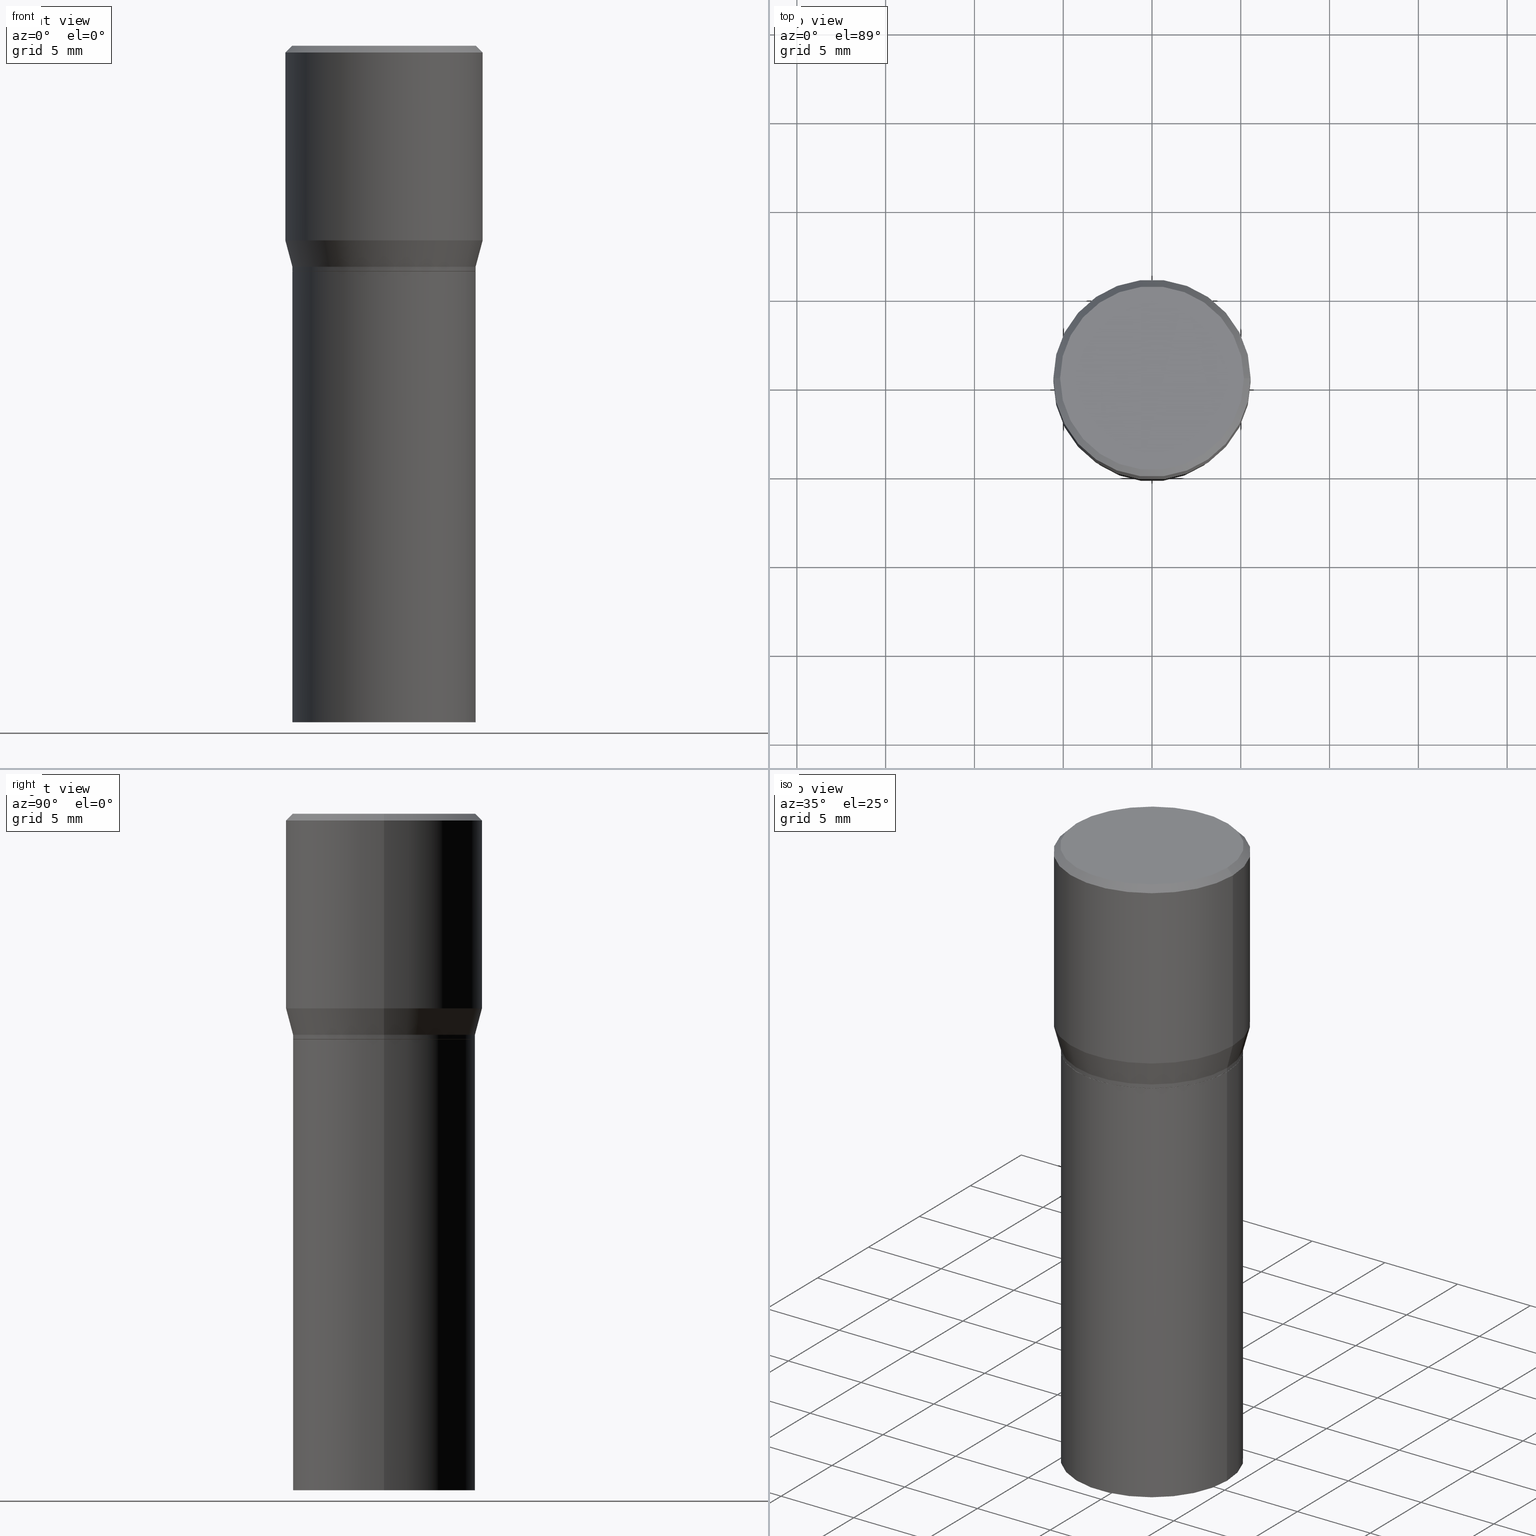
[diagram: canonical four-view strip — front | top / right | iso, engineering-drawing reading convention]
A machine part, canonical four-view strip (front | top / right | iso — engineering-drawing reading convention). The complete STEP part file that produces these views, byte-faithful:
ISO-10303-21;
HEADER;
FILE_DESCRIPTION (( 'STEP AP203' ),
    '1' );
FILE_NAME ('30456.STEP',
    '2024-03-13T16:11:54',
    ( '' ),
    ( '' ),
    'SwSTEP 2.0',
    'SolidWorks 2023',
    '' );
FILE_SCHEMA (( 'CONFIG_CONTROL_DESIGN' ));
ENDSEC;

DATA;
#1 = ORIENTED_EDGE ( 'NONE', *, *, #121, .T. ) ;
#2 = AXIS2_PLACEMENT_3D ( 'NONE', #225, #269, #127 ) ;
#3 = VECTOR ( 'NONE', #75, 39.37007874015748143 ) ;
#4 = DIRECTION ( 'NONE',  ( 1.000000000000000000, -6.982962677686265922E-15, 0.000000000000000000 ) ) ;
#5 = VERTEX_POINT ( 'NONE', #169 ) ;
#6 = LINE ( 'NONE', #156, #153 ) ;
#7 = DIRECTION ( 'NONE',  ( 1.000000000000000000, -6.982962677686264344E-15, 0.000000000000000000 ) ) ;
#8 = CARTESIAN_POINT ( 'NONE',  ( 1.198279715030717173E-29, -1.710825856033141537E-15, -0.4900000000000001021 ) ) ;
#9 = EDGE_CURVE ( 'NONE', #20, #426, #421, .T. ) ;
#10 = CARTESIAN_POINT ( 'NONE',  ( 1.418239719838093003E-15, 0.2030999999999982819, -0.5000000000000007772 ) ) ;
#11 = CARTESIAN_POINT ( 'NONE',  ( 0.000000000000000000, 0.000000000000000000, 0.000000000000000000 ) ) ;
#12 = AXIS2_PLACEMENT_3D ( 'NONE', #458, #349, #200 ) ;
#13 = CC_DESIGN_DATE_AND_TIME_ASSIGNMENT ( #345, #28, ( #419 ) ) ;
#14 = VECTOR ( 'NONE', #161, 39.37007874015748854 ) ;
#15 = CARTESIAN_POINT ( 'NONE',  ( 0.2026000000000000023, -3.160488907920811151E-15, -0.5000000000000001110 ) ) ;
#16 = ADVANCED_BREP_SHAPE_REPRESENTATION ( '30456', ( #134, #140, #12 ), #175 ) ;
#17 = CARTESIAN_POINT ( 'NONE',  ( 0.2031000000000000028, -3.162234648590232655E-15, -0.4995000000000001661 ) ) ;
#18 = ADVANCED_FACE ( 'NONE', ( #457 ), #388, .T. ) ;
#19 = EDGE_LOOP ( 'NONE', ( #152, #453, #383, #412 ) ) ;
#20 = VERTEX_POINT ( 'NONE', #69 ) ;
#21 = FACE_OUTER_BOUND ( 'NONE', #197, .T. ) ;
#22 = PERSON_AND_ORGANIZATION_ROLE ( 'classification_officer' ) ;
#23 = EDGE_LOOP ( 'NONE', ( #452, #35, #178, #455 ) ) ;
#24 = AXIS2_PLACEMENT_3D ( 'NONE', #246, #394, #328 ) ;
#25 = PERSON_AND_ORGANIZATION_ROLE ( 'design_owner' ) ;
#26 = DIRECTION ( 'NONE',  ( 1.000000000000000000, -6.982962677686266711E-15, 4.876176775795935793E-29 ) ) ;
#27 = ORIENTED_EDGE ( 'NONE', *, *, #403, .F. ) ;
#28 = DATE_TIME_ROLE ( 'classification_date' ) ;
#29 = ORIENTED_EDGE ( 'NONE', *, *, #102, .F. ) ;
#30 = AXIS2_PLACEMENT_3D ( 'NONE', #146, #360, #70 ) ;
#31 = COORDINATED_UNIVERSAL_TIME_OFFSET ( 5, 0, .BEHIND. ) ;
#32 = EDGE_CURVE ( 'NONE', #241, #445, #94, .T. ) ;
#33 = ORIENTED_EDGE ( 'NONE', *, *, #371, .F. ) ;
#34 = DIRECTION ( 'NONE',  ( -2.445468806185136597E-29, 3.491481338843145583E-15, 1.000000000000000000 ) ) ;
#35 = ORIENTED_EDGE ( 'NONE', *, *, #311, .T. ) ;
#36 = APPROVAL_PERSON_ORGANIZATION ( #272, #343, #234 ) ;
#37 = EDGE_CURVE ( 'NONE', #199, #20, #309, .T. ) ;
#38 = CC_DESIGN_APPROVAL ( #343, ( #350 ) ) ;
#39 = DIRECTION ( 'NONE',  ( 1.000000000000000000, -6.982962677686266711E-15, 4.876176775795935793E-29 ) ) ;
#40 = EDGE_LOOP ( 'NONE', ( #281, #235, #227, #154 ) ) ;
#41 = ORIENTED_EDGE ( 'NONE', *, *, #32, .F. ) ;
#42 = AXIS2_PLACEMENT_3D ( 'NONE', #331, #54, #80 ) ;
#43 = CIRCLE ( 'NONE', #93, 0.2026000000000000023 ) ;
#44 = CARTESIAN_POINT ( 'NONE',  ( -2.592568563193567003E-45, 3.701500806376036554E-31, 1.060151966214568974E-16 ) ) ;
#45 = EDGE_CURVE ( 'NONE', #431, #20, #103, .T. ) ;
#46 = CARTESIAN_POINT ( 'NONE',  ( 1.222734403092568719E-29, -1.745740669421573186E-15, -0.5000000000000001110 ) ) ;
#47 = PLANE ( 'NONE',  #295 ) ;
#48 = VERTEX_POINT ( 'NONE', #317 ) ;
#49 = CARTESIAN_POINT ( 'NONE',  ( 3.668203209277704895E-29, -5.237222008264718177E-15, -1.500000000000000222 ) ) ;
#50 = EDGE_CURVE ( 'NONE', #67, #101, #324, .T. ) ;
#51 = ORIENTED_EDGE ( 'NONE', *, *, #50, .F. ) ;
#52 = CC_DESIGN_PERSON_AND_ORGANIZATION_ASSIGNMENT ( #308, #25, ( #158 ) ) ;
#53 = ORIENTED_EDGE ( 'NONE', *, *, #362, .T. ) ;
#54 = DIRECTION ( 'NONE',  ( 2.438088387897960049E-29, -3.491481338843145188E-15, -1.000000000000000000 ) ) ;
#55 = VECTOR ( 'NONE', #450, 39.37007874015748854 ) ;
#56 = CARTESIAN_POINT ( 'NONE',  ( 0.000000000000000000, 0.000000000000000000, 0.000000000000000000 ) ) ;
#57 = CONICAL_SURFACE ( 'NONE', #313, 0.2187500000000000000, 0.7853981633974450594 ) ;
#58 = PRODUCT_DEFINITION_FORMATION_WITH_SPECIFIED_SOURCE ( 'ANY', '', #158, .NOT_KNOWN. ) ;
#59 = PERSON_AND_ORGANIZATION ( #285, #407 ) ;
#60 = PRODUCT_RELATED_PRODUCT_CATEGORY ( 'detail', '', ( #158 ) ) ;
#61 = PERSON_AND_ORGANIZATION ( #285, #407 ) ;
#62 = EDGE_CURVE ( 'NONE', #241, #122, #155, .T. ) ;
#63 = VECTOR ( 'NONE', #310, 39.37007874015748143 ) ;
#64 = CIRCLE ( 'NONE', #232, 0.2187500000000000000 ) ;
#65 = EDGE_LOOP ( 'NONE', ( #451, #373 ) ) ;
#66 = DIRECTION ( 'NONE',  ( -2.445468806185136597E-29, 3.491481338843145583E-15, 1.000000000000000000 ) ) ;
#67 = VERTEX_POINT ( 'NONE', #214 ) ;
#68 = CARTESIAN_POINT ( 'NONE',  ( 1.222734403092568719E-29, -1.745740669421573186E-15, -0.5000000000000001110 ) ) ;
#69 = CARTESIAN_POINT ( 'NONE',  ( 0.2187500000000000000, -1.579895305826517922E-15, -0.01499999999999999944 ) ) ;
#70 = DIRECTION ( 'NONE',  ( 1.000000000000000000, -6.982962677686268288E-15, 0.000000000000000000 ) ) ;
#71 = AXIS2_PLACEMENT_3D ( 'NONE', #8, #444, #258 ) ;
#72 = DIRECTION ( 'NONE',  ( 1.000000000000000000, -6.982962677686265922E-15, 4.876176775795935793E-29 ) ) ;
#73 = AXIS2_PLACEMENT_3D ( 'NONE', #250, #66, #400 ) ;
#74 = DIRECTION ( 'NONE',  ( 1.000000000000000000, -6.982962677686266711E-15, 4.876176775795935232E-29 ) ) ;
#75 = DIRECTION ( 'NONE',  ( -2.445468806185136877E-29, 3.491481338843145188E-15, 1.000000000000000000 ) ) ;
#76 = DIRECTION ( 'NONE',  ( 1.000000000000000000, -6.982962677686265922E-15, 0.000000000000000000 ) ) ;
#77 = EDGE_CURVE ( 'NONE', #129, #431, #395, .T. ) ;
#78 = CARTESIAN_POINT ( 'NONE',  ( 1.198279715030717173E-29, -1.710825856033141537E-15, -0.4900000000000001021 ) ) ;
#79 = PLANE ( 'NONE',  #312 ) ;
#80 = DIRECTION ( 'NONE',  ( -1.000000000000000000, 6.982962677686265922E-15, -4.876176775795935793E-29 ) ) ;
#81 = VECTOR ( 'NONE', #438, 39.37007874015748854 ) ;
#82 = ORIENTED_EDGE ( 'NONE', *, *, #268, .F. ) ;
#83 = APPROVAL ( #375, 'UNSPECIFIED' ) ;
#84 = DIRECTION ( 'NONE',  ( 1.000000000000000000, -6.982962677686268288E-15, 0.000000000000000000 ) ) ;
#85 = DIRECTION ( 'NONE',  ( -2.445468806185136597E-29, 3.491481338843145583E-15, 1.000000000000000000 ) ) ;
#86 = PLANE ( 'NONE',  #42 ) ;
#87 = ADVANCED_FACE ( 'NONE', ( #393 ), #203, .T. ) ;
#88 =( CONVERSION_BASED_UNIT ( 'INCH', #259 ) LENGTH_UNIT ( ) NAMED_UNIT ( #316 ) );
#89 = VECTOR ( 'NONE', #116, 39.37007874015748143 ) ;
#90 = DATE_AND_TIME ( #427, #204 ) ;
#91 = ADVANCED_FACE ( 'NONE', ( #392 ), #448, .T. ) ;
#92 = VERTEX_POINT ( 'NONE', #224 ) ;
#93 = AXIS2_PLACEMENT_3D ( 'NONE', #217, #363, #84 ) ;
#94 = CIRCLE ( 'NONE', #365, 0.2031000000000000028 ) ;
#95 = CC_DESIGN_SECURITY_CLASSIFICATION ( #419, ( #58 ) ) ;
#96 = CC_DESIGN_PERSON_AND_ORGANIZATION_ASSIGNMENT ( #61, #267, ( #58 ) ) ;
#97 = COORDINATED_UNIVERSAL_TIME_OFFSET ( 5, 0, .BEHIND. ) ;
#98 = DIRECTION ( 'NONE',  ( -2.445468806185136877E-29, 3.491481338843145188E-15, 1.000000000000000000 ) ) ;
#99 = CALENDAR_DATE ( 2024, 13, 3 ) ;
#100 = ORIENTED_EDGE ( 'NONE', *, *, #371, .T. ) ;
#101 = VERTEX_POINT ( 'NONE', #368 ) ;
#102 = EDGE_CURVE ( 'NONE', #445, #205, #333, .T. ) ;
#103 = LINE ( 'NONE', #348, #248 ) ;
#104 = DIRECTION ( 'NONE',  ( 1.000000000000000000, -6.982962677686265133E-15, 0.000000000000000000 ) ) ;
#105 = UNCERTAINTY_MEASURE_WITH_UNIT (LENGTH_MEASURE( 1.000000000000000082E-05 ), #88, 'distance_accuracy_value', 'NONE');
#106 = LINE ( 'NONE', #319, #81 ) ;
#107 = CARTESIAN_POINT ( 'NONE',  ( 1.055448208544146876E-29, -1.506900319041867721E-15, -0.4315934048615475138 ) ) ;
#108 = AXIS2_PLACEMENT_3D ( 'NONE', #11, #159, #449 ) ;
#109 = DIRECTION ( 'NONE',  ( -2.445468806185136597E-29, 3.491481338843145583E-15, 1.000000000000000000 ) ) ;
#110 = ORIENTED_EDGE ( 'NONE', *, *, #262, .F. ) ;
#111 = ORIENTED_EDGE ( 'NONE', *, *, #226, .F. ) ;
#112 = ADVANCED_FACE ( 'NONE', ( #437 ), #57, .T. ) ;
#113 = DIRECTION ( 'NONE',  ( -2.445468806185136597E-29, 3.491481338843145583E-15, 1.000000000000000000 ) ) ;
#114 = DIRECTION ( 'NONE',  ( -2.445468806185136597E-29, 3.491481338843145583E-15, 1.000000000000000000 ) ) ;
#115 = CC_DESIGN_PERSON_AND_ORGANIZATION_ASSIGNMENT ( #338, #22, ( #419 ) ) ;
#116 = DIRECTION ( 'NONE',  ( -2.445468806185136877E-29, 3.491481338843145188E-15, 1.000000000000000000 ) ) ;
#117 = AXIS2_PLACEMENT_3D ( 'NONE', #78, #216, #4 ) ;
#118 = DIRECTION ( 'NONE',  ( -2.445468806185136597E-29, 3.491481338843145583E-15, 1.000000000000000000 ) ) ;
#119 = AXIS2_PLACEMENT_3D ( 'NONE', #461, #143, #244 ) ;
#120 = AXIS2_PLACEMENT_3D ( 'NONE', #107, #462, #104 ) ;
#121 = EDGE_CURVE ( 'NONE', #129, #426, #401, .T. ) ;
#122 = VERTEX_POINT ( 'NONE', #196 ) ;
#123 = DIRECTION ( 'NONE',  ( -2.445468806185136597E-29, 3.491481338843145583E-15, 1.000000000000000000 ) ) ;
#124 = ORIENTED_EDGE ( 'NONE', *, *, #268, .T. ) ;
#125 = ORIENTED_EDGE ( 'NONE', *, *, #135, .T. ) ;
#126 = CARTESIAN_POINT ( 'NONE',  ( 3.668203209277705088E-31, -5.237222008264718399E-17, -0.01499999999999999944 ) ) ;
#127 = DIRECTION ( 'NONE',  ( 1.000000000000000000, -6.982962677686266711E-15, 0.000000000000000000 ) ) ;
#128 = AXIS2_PLACEMENT_3D ( 'NONE', #326, #157, #76 ) ;
#129 = VERTEX_POINT ( 'NONE', #337 ) ;
#130 = ADVANCED_FACE ( 'NONE', ( #374 ), #86, .F. ) ;
#131 = COORDINATED_UNIVERSAL_TIME_OFFSET ( 5, 0, .BEHIND. ) ;
#132 = DATE_AND_TIME ( #99, #356 ) ;
#133 = ORIENTED_EDGE ( 'NONE', *, *, #221, .F. ) ;
#134 = MANIFOLD_SOLID_BREP ( 'Body-Move/Copy2[1]', #456 ) ;
#135 = EDGE_CURVE ( 'NONE', #48, #164, #301, .T. ) ;
#136 = VECTOR ( 'NONE', #353, 39.37007874015748143 ) ;
#137 = AXIS2_PLACEMENT_3D ( 'NONE', #194, #436, #72 ) ;
#138 = DATE_AND_TIME ( #414, #439 ) ;
#139 = ORIENTED_EDGE ( 'NONE', *, *, #121, .F. ) ;
#140 = MANIFOLD_SOLID_BREP ( 'Body-Move/Copy2[2]', #339 ) ;
#141 = ORIENTED_EDGE ( 'NONE', *, *, #50, .T. ) ;
#142 = DIRECTION ( 'NONE',  ( -2.445468806185136877E-29, 3.491481338843145188E-15, 1.000000000000000000 ) ) ;
#143 = DIRECTION ( 'NONE',  ( -2.445468806185136597E-29, 3.491481338843145583E-15, 1.000000000000000000 ) ) ;
#144 = DIRECTION ( 'NONE',  ( 1.000000000000000000, -6.982962677686266711E-15, 4.876176775795935793E-29 ) ) ;
#145 = EDGE_LOOP ( 'NONE', ( #100, #409, #355, #29 ) ) ;
#146 = CARTESIAN_POINT ( 'NONE',  ( 1.222734403092568719E-29, -1.745740669421573186E-15, -0.5000000000000001110 ) ) ;
#147 = DIRECTION ( 'NONE',  ( -2.445468806185136597E-29, 3.491481338843145583E-15, 1.000000000000000000 ) ) ;
#148 =( NAMED_UNIT ( * ) SI_UNIT ( $, .STERADIAN. ) SOLID_ANGLE_UNIT ( ) );
#149 = CC_DESIGN_PERSON_AND_ORGANIZATION_ASSIGNMENT ( #230, #236, ( #350 ) ) ;
#150 = DIRECTION ( 'NONE',  ( -2.445468806185136597E-29, 3.491481338843145583E-15, 1.000000000000000000 ) ) ;
#151 = CARTESIAN_POINT ( 'NONE',  ( 0.2187500000000000000, -3.034423404785738170E-15, -0.4315934048615475138 ) ) ;
#152 = ORIENTED_EDGE ( 'NONE', *, *, #346, .F. ) ;
#153 = VECTOR ( 'NONE', #185, 39.37007874015748854 ) ;
#154 = ORIENTED_EDGE ( 'NONE', *, *, #37, .F. ) ;
#155 = LINE ( 'NONE', #173, #63 ) ;
#156 = CARTESIAN_POINT ( 'NONE',  ( 0.2031000000000000583, -3.129065575871222509E-15, -0.4900000000000001021 ) ) ;
#157 = DIRECTION ( 'NONE',  ( -2.445468806185136597E-29, 3.491481338843145583E-15, 1.000000000000000000 ) ) ;
#158 = PRODUCT ( '30456', '30456', '', ( #171 ) ) ;
#159 = DIRECTION ( 'NONE',  ( -2.445468806185136597E-29, 3.491481338843145583E-15, 1.000000000000000000 ) ) ;
#160 = VECTOR ( 'NONE', #142, 39.37007874015748143 ) ;
#161 = DIRECTION ( 'NONE',  ( 0.7071067811865715536, -2.468850131082509496E-15, 0.7071067811865232589 ) ) ;
#162 = LINE ( 'NONE', #336, #55 ) ;
#163 = DIRECTION ( 'NONE',  ( -1.000000000000000000, 6.982962677686266711E-15, 0.000000000000000000 ) ) ;
#164 = VERTEX_POINT ( 'NONE', #192 ) ;
#165 = ADVANCED_FACE ( 'NONE', ( #21 ), #300, .T. ) ;
#166 = APPROVAL_DATE_TIME ( #132, #415 ) ;
#167 = AXIS2_PLACEMENT_3D ( 'NONE', #298, #113, #213 ) ;
#168 = CC_DESIGN_DATE_AND_TIME_ASSIGNMENT ( #90, #271, ( #350 ) ) ;
#169 = CARTESIAN_POINT ( 'NONE',  ( -0.2031000000000000028, -2.048369042514382480E-15, -0.5000000000000001110 ) ) ;
#170 = PERSON_AND_ORGANIZATION ( #285, #407 ) ;
#171 = MECHANICAL_CONTEXT ( 'NONE', #189, 'mechanical' ) ;
#172 = DIRECTION ( 'NONE',  ( 0.7071067811865452413, -7.319954787623248157E-15, -0.7071067811865497932 ) ) ;
#173 = CARTESIAN_POINT ( 'NONE',  ( -0.2031000000000000028, 1.443112296328763497E-15, -9.990357168307714203E-30 ) ) ;
#174 = ADVANCED_FACE ( 'NONE', ( #293 ), #273, .T. ) ;
#175 =( GEOMETRIC_REPRESENTATION_CONTEXT ( 3 ) GLOBAL_UNCERTAINTY_ASSIGNED_CONTEXT ( ( #105 ) ) GLOBAL_UNIT_ASSIGNED_CONTEXT ( ( #88, #181, #148 ) ) REPRESENTATION_CONTEXT ( 'NONE', 'WORKASPACE' ) );
#176 = FACE_OUTER_BOUND ( 'NONE', #263, .T. ) ;
#177 = CARTESIAN_POINT ( 'NONE',  ( 0.000000000000000000, 0.000000000000000000, 0.000000000000000000 ) ) ;
#178 = ORIENTED_EDGE ( 'NONE', *, *, #201, .T. ) ;
#179 = AXIS2_PLACEMENT_3D ( 'NONE', #286, #147, #283 ) ;
#180 = EDGE_CURVE ( 'NONE', #164, #445, #222, .T. ) ;
#181 =( NAMED_UNIT ( * ) PLANE_ANGLE_UNIT ( ) SI_UNIT ( $, .RADIAN. ) );
#182 = ORIENTED_EDGE ( 'NONE', *, *, #45, .T. ) ;
#183 = CARTESIAN_POINT ( 'NONE',  ( 3.668203209277704895E-29, -5.237222008264718177E-15, -1.500000000000000222 ) ) ;
#184 = EDGE_CURVE ( 'NONE', #199, #92, #288, .T. ) ;
#185 = DIRECTION ( 'NONE',  ( 0.2588190451025211836, 1.565188264969622559E-15, 0.9659258262890679791 ) ) ;
#186 = CARTESIAN_POINT ( 'NONE',  ( -0.2031000000000000028, -2.048369042514382480E-15, -1.500000000000000222 ) ) ;
#187 = CIRCLE ( 'NONE', #128, 0.2031000000000000583 ) ;
#188 = FACE_OUTER_BOUND ( 'NONE', #40, .T. ) ;
#189 = APPLICATION_CONTEXT ( 'configuration controlled 3d designs of mechanical parts and assemblies' ) ;
#190 = DIRECTION ( 'NONE',  ( 1.000000000000000000, -6.982962677686266711E-15, 4.875065411617369217E-29 ) ) ;
#191 = DIRECTION ( 'NONE',  ( -1.000000000000000000, 6.982962677686266711E-15, 0.000000000000000000 ) ) ;
#192 = CARTESIAN_POINT ( 'NONE',  ( 0.2026000000000000023, -3.160488907920811151E-15, -0.5000000000000001110 ) ) ;
#193 = ADVANCED_FACE ( 'NONE', ( #188 ), #361, .T. ) ;
#194 = CARTESIAN_POINT ( 'NONE',  ( 1.222734403092568719E-29, -1.745740669421573186E-15, -0.5000000000000001110 ) ) ;
#195 = DIRECTION ( 'NONE',  ( 1.000000000000000000, -6.982962677686265922E-15, 4.876176775795935793E-29 ) ) ;
#196 = CARTESIAN_POINT ( 'NONE',  ( -0.2031000000000000583, -1.101508221355132898E-16, -0.4900000000000001021 ) ) ;
#197 = EDGE_LOOP ( 'NONE', ( #110, #256, #141, #111 ) ) ;
#198 = AXIS2_PLACEMENT_3D ( 'NONE', #56, #233, #26 ) ;
#199 = VERTEX_POINT ( 'NONE', #151 ) ;
#200 = DIRECTION ( 'NONE',  ( 1.000000000000000000, 0.000000000000000000, 0.000000000000000000 ) ) ;
#201 = EDGE_CURVE ( 'NONE', #205, #199, #6, .T. ) ;
#202 = SECURITY_CLASSIFICATION_LEVEL ( 'unclassified' ) ;
#203 = CONICAL_SURFACE ( 'NONE', #30, 0.2026000000000000023, 0.7853981633974824739 ) ;
#204 = LOCAL_TIME ( 12, 11, 54.00000000000000000, #97 ) ;
#205 = VERTEX_POINT ( 'NONE', #215 ) ;
#206 = PERSON_AND_ORGANIZATION_ROLE ( 'creator' ) ;
#207 = APPROVAL_DATE_TIME ( #342, #83 ) ;
#208 = EDGE_LOOP ( 'NONE', ( #82, #297 ) ) ;
#209 = CARTESIAN_POINT ( 'NONE',  ( 0.2187500000000000000, -1.527523085743870843E-15, 1.066663669705360885E-29 ) ) ;
#210 = LOCAL_TIME ( 12, 11, 54.00000000000000000, #31 ) ;
#211 = DIRECTION ( 'NONE',  ( 1.000000000000000000, -6.982962677686268288E-15, 0.000000000000000000 ) ) ;
#212 = CIRCLE ( 'NONE', #252, 0.2031000000000000028 ) ;
#213 = DIRECTION ( 'NONE',  ( 1.000000000000000000, -6.982962677686265133E-15, 0.000000000000000000 ) ) ;
#214 = CARTESIAN_POINT ( 'NONE',  ( 0.2031000000000000028, -6.655461728102798952E-15, -1.500000000000000222 ) ) ;
#215 = CARTESIAN_POINT ( 'NONE',  ( 0.2031000000000000583, -3.129065575871222509E-15, -0.4900000000000001021 ) ) ;
#216 = DIRECTION ( 'NONE',  ( -2.445468806185136597E-29, 3.491481338843145583E-15, 1.000000000000000000 ) ) ;
#217 = CARTESIAN_POINT ( 'NONE',  ( 1.222734403092568719E-29, -1.745740669421573186E-15, -0.5000000000000001110 ) ) ;
#218 = CARTESIAN_POINT ( 'NONE',  ( 3.668203209277705088E-31, -5.237222008264718399E-17, -0.01499999999999999944 ) ) ;
#219 = AXIS2_PLACEMENT_3D ( 'NONE', #390, #34, #144 ) ;
#220 = CARTESIAN_POINT ( 'NONE',  ( 0.000000000000000000, 0.000000000000000000, 0.000000000000000000 ) ) ;
#221 = EDGE_CURVE ( 'NONE', #48, #241, #106, .T. ) ;
#222 = LINE ( 'NONE', #15, #14 ) ;
#223 =( LENGTH_UNIT ( ) NAMED_UNIT ( * ) SI_UNIT ( $, .METRE. ) );
#224 = CARTESIAN_POINT ( 'NONE',  ( -0.2187500000000000000, 4.741191543335144142E-17, -0.4315934048615475138 ) ) ;
#225 = CARTESIAN_POINT ( 'NONE',  ( 3.668203209277705088E-31, -5.237222008264718399E-17, -0.01499999999999999944 ) ) ;
#226 = EDGE_CURVE ( 'NONE', #5, #101, #430, .T. ) ;
#227 = ORIENTED_EDGE ( 'NONE', *, *, #9, .F. ) ;
#228 = PERSON_AND_ORGANIZATION ( #285, #407 ) ;
#229 = ORIENTED_EDGE ( 'NONE', *, *, #32, .T. ) ;
#230 = PERSON_AND_ORGANIZATION ( #285, #407 ) ;
#231 = APPROVAL_PERSON_ORGANIZATION ( #170, #83, #303 ) ;
#232 = AXIS2_PLACEMENT_3D ( 'NONE', #320, #354, #432 ) ;
#233 = DIRECTION ( 'NONE',  ( -2.445468806185136597E-29, 3.491481338843145583E-15, 1.000000000000000000 ) ) ;
#234 = APPROVAL_ROLE ( '' ) ;
#235 = ORIENTED_EDGE ( 'NONE', *, *, #346, .T. ) ;
#236 = PERSON_AND_ORGANIZATION_ROLE ( 'creator' ) ;
#237 = DIRECTION ( 'NONE',  ( -2.445468806185136597E-29, 3.491481338843145583E-15, 1.000000000000000000 ) ) ;
#238 = ORIENTED_EDGE ( 'NONE', *, *, #201, .F. ) ;
#239 = EDGE_CURVE ( 'NONE', #344, #67, #334, .T. ) ;
#240 = CC_DESIGN_APPROVAL ( #83, ( #419 ) ) ;
#241 = VERTEX_POINT ( 'NONE', #435 ) ;
#242 = CYLINDRICAL_SURFACE ( 'NONE', #219, 0.2031000000000000028 ) ;
#243 = ORIENTED_EDGE ( 'NONE', *, *, #45, .F. ) ;
#244 = DIRECTION ( 'NONE',  ( 1.000000000000000000, -6.982962677686266711E-15, 4.875065411617369217E-29 ) ) ;
#245 = ORIENTED_EDGE ( 'NONE', *, *, #180, .T. ) ;
#246 = CARTESIAN_POINT ( 'NONE',  ( 1.222734403092568719E-29, -1.745740669421573186E-15, -0.5000000000000001110 ) ) ;
#247 = DIRECTION ( 'NONE',  ( -2.445468806185136597E-29, 3.491481338843145583E-15, 1.000000000000000000 ) ) ;
#248 = VECTOR ( 'NONE', #172, 39.37007874015748143 ) ;
#249 = FACE_OUTER_BOUND ( 'NONE', #321, .T. ) ;
#250 = CARTESIAN_POINT ( 'NONE',  ( 1.221511668689476057E-29, -1.743994928752151682E-15, -0.4995000000000001661 ) ) ;
#251 = FACE_OUTER_BOUND ( 'NONE', #420, .T. ) ;
#252 = AXIS2_PLACEMENT_3D ( 'NONE', #49, #85, #7 ) ;
#253 = ORIENTED_EDGE ( 'NONE', *, *, #311, .F. ) ;
#254 = CONICAL_SURFACE ( 'NONE', #378, 0.2187500000000000000, 0.7853981633974450594 ) ;
#255 = DIRECTION ( 'NONE',  ( 2.438088387897960049E-29, -3.491481338843145188E-15, -1.000000000000000000 ) ) ;
#256 = ORIENTED_EDGE ( 'NONE', *, *, #239, .T. ) ;
#257 = CC_DESIGN_PERSON_AND_ORGANIZATION_ASSIGNMENT ( #59, #206, ( #58 ) ) ;
#258 = DIRECTION ( 'NONE',  ( 1.000000000000000000, -6.982962677686265922E-15, 0.000000000000000000 ) ) ;
#259 = LENGTH_MEASURE_WITH_UNIT ( LENGTH_MEASURE( 0.02539999999999999897 ), #223 );
#260 = ORIENTED_EDGE ( 'NONE', *, *, #180, .F. ) ;
#261 = CARTESIAN_POINT ( 'NONE',  ( 0.2031000000000000028, -1.418239719838080775E-15, 9.903515031641546145E-30 ) ) ;
#262 = EDGE_CURVE ( 'NONE', #344, #5, #289, .T. ) ;
#263 = EDGE_LOOP ( 'NONE', ( #277, #379, #370, #238 ) ) ;
#264 = CARTESIAN_POINT ( 'NONE',  ( -0.2187500000000000000, 1.475150865661223567E-15, -0.01499999999999999944 ) ) ;
#265 = LOCAL_TIME ( 12, 11, 54.00000000000000000, #131 ) ;
#266 = EDGE_LOOP ( 'NONE', ( #124, #284, #33, #260 ) ) ;
#267 = PERSON_AND_ORGANIZATION_ROLE ( 'design_supplier' ) ;
#268 = EDGE_CURVE ( 'NONE', #164, #48, #43, .T. ) ;
#269 = DIRECTION ( 'NONE',  ( -2.445468806185136597E-29, 3.491481338843145583E-15, 1.000000000000000000 ) ) ;
#270 = ORIENTED_EDGE ( 'NONE', *, *, #262, .T. ) ;
#271 = DATE_TIME_ROLE ( 'creation_date' ) ;
#272 = PERSON_AND_ORGANIZATION ( #285, #407 ) ;
#273 = CONICAL_SURFACE ( 'NONE', #71, 0.2031000000000000583, 0.2617993877991499074 ) ;
#274 = APPROVAL_PERSON_ORGANIZATION ( #228, #415, #276 ) ;
#275 = ORIENTED_EDGE ( 'NONE', *, *, #77, .F. ) ;
#276 = APPROVAL_ROLE ( '' ) ;
#277 = ORIENTED_EDGE ( 'NONE', *, *, #418, .T. ) ;
#278 = APPROVAL_STATUS ( 'not_yet_approved' ) ;
#279 = ORIENTED_EDGE ( 'NONE', *, *, #362, .F. ) ;
#280 = AXIS2_PLACEMENT_3D ( 'NONE', #292, #114, #74 ) ;
#281 = ORIENTED_EDGE ( 'NONE', *, *, #184, .T. ) ;
#282 = DIRECTION ( 'NONE',  ( -2.445468806185136597E-29, 3.491481338843145583E-15, 1.000000000000000000 ) ) ;
#283 = DIRECTION ( 'NONE',  ( 1.000000000000000000, -6.982962677686265922E-15, 0.000000000000000000 ) ) ;
#284 = ORIENTED_EDGE ( 'NONE', *, *, #221, .T. ) ;
#285 = PERSON ( 'UNSPECIFIED', 'UNSPECIFIED', 'UNSPECIFIED', ('UNSPECIFIED'), ('UNSPECIFIED'), ('UNSPECIFIED') ) ;
#286 = CARTESIAN_POINT ( 'NONE',  ( 1.222734403092568719E-29, -1.745740669421573186E-15, -0.5000000000000001110 ) ) ;
#287 = ORIENTED_EDGE ( 'NONE', *, *, #239, .F. ) ;
#288 = CIRCLE ( 'NONE', #167, 0.2187500000000000000 ) ;
#289 = LINE ( 'NONE', #399, #3 ) ;
#290 = ADVANCED_FACE ( 'NONE', ( #325 ), #291, .F. ) ;
#291 = PLANE ( 'NONE',  #137 ) ;
#292 = CARTESIAN_POINT ( 'NONE',  ( 0.000000000000000000, 0.000000000000000000, 0.000000000000000000 ) ) ;
#293 = FACE_OUTER_BOUND ( 'NONE', #23, .T. ) ;
#294 = VECTOR ( 'NONE', #411, 39.37007874015748143 ) ;
#295 = AXIS2_PLACEMENT_3D ( 'NONE', #10, #255, #408 ) ;
#296 = ADVANCED_FACE ( 'NONE', ( #251 ), #402, .T. ) ;
#297 = ORIENTED_EDGE ( 'NONE', *, *, #135, .F. ) ;
#298 = CARTESIAN_POINT ( 'NONE',  ( 1.055448208544146876E-29, -1.506900319041867721E-15, -0.4315934048615475138 ) ) ;
#299 = ORIENTED_EDGE ( 'NONE', *, *, #9, .T. ) ;
#300 = CYLINDRICAL_SURFACE ( 'NONE', #108, 0.2031000000000000028 ) ;
#301 = CIRCLE ( 'NONE', #306, 0.2026000000000000023 ) ;
#302 = CIRCLE ( 'NONE', #179, 0.2031000000000000028 ) ;
#303 = APPROVAL_ROLE ( '' ) ;
#304 = FACE_OUTER_BOUND ( 'NONE', #406, .T. ) ;
#305 = SHAPE_DEFINITION_REPRESENTATION ( #364, #16 ) ;
#306 = AXIS2_PLACEMENT_3D ( 'NONE', #46, #123, #327 ) ;
#307 = ADVANCED_FACE ( 'NONE', ( #318 ), #47, .F. ) ;
#308 = PERSON_AND_ORGANIZATION ( #285, #407 ) ;
#309 = LINE ( 'NONE', #209, #372 ) ;
#310 = DIRECTION ( 'NONE',  ( -2.445468806185136877E-29, 3.491481338843145188E-15, 1.000000000000000000 ) ) ;
#311 = EDGE_CURVE ( 'NONE', #122, #205, #396, .T. ) ;
#312 = AXIS2_PLACEMENT_3D ( 'NONE', #441, #405, #195 ) ;
#313 = AXIS2_PLACEMENT_3D ( 'NONE', #126, #410, #163 ) ;
#314 = FACE_OUTER_BOUND ( 'NONE', #145, .T. ) ;
#315 = EDGE_LOOP ( 'NONE', ( #27, #182, #299, #139 ) ) ;
#316 = DIMENSIONAL_EXPONENTS ( 1.000000000000000000, 0.000000000000000000, 0.000000000000000000, 0.000000000000000000, 0.000000000000000000, 0.000000000000000000, 0.000000000000000000 ) ;
#317 = CARTESIAN_POINT ( 'NONE',  ( -0.2026000000000000023, -3.035318595974993861E-16, -0.5000000000000001110 ) ) ;
#318 = FACE_OUTER_BOUND ( 'NONE', #347, .T. ) ;
#319 = CARTESIAN_POINT ( 'NONE',  ( -0.2026000000000000023, -3.061810867716101928E-16, -0.5000000000000001110 ) ) ;
#320 = CARTESIAN_POINT ( 'NONE',  ( 3.668203209277705088E-31, -5.237222008264718399E-17, -0.01499999999999999944 ) ) ;
#321 = EDGE_LOOP ( 'NONE', ( #416, #229, #428, #253 ) ) ;
#322 = ADVANCED_FACE ( 'NONE', ( #249 ), #398, .T. ) ;
#323 = CIRCLE ( 'NONE', #73, 0.2031000000000000028 ) ;
#324 = LINE ( 'NONE', #397, #136 ) ;
#325 = FACE_OUTER_BOUND ( 'NONE', #208, .T. ) ;
#326 = CARTESIAN_POINT ( 'NONE',  ( 1.198279715030717173E-29, -1.710825856033141537E-15, -0.4900000000000001021 ) ) ;
#327 = DIRECTION ( 'NONE',  ( 1.000000000000000000, -6.982962677686268288E-15, 0.000000000000000000 ) ) ;
#328 = DIRECTION ( 'NONE',  ( 1.000000000000000000, -6.982962677686265922E-15, 0.000000000000000000 ) ) ;
#329 = CARTESIAN_POINT ( 'NONE',  ( -0.2187500000000000000, 7.746759649129616577E-16, -0.01499999999999999944 ) ) ;
#330 = FACE_OUTER_BOUND ( 'NONE', #413, .T. ) ;
#331 = CARTESIAN_POINT ( 'NONE',  ( 1.422778645578576487E-15, 0.2037499999999999867, -6.583817244785623957E-16 ) ) ;
#332 = ADVANCED_FACE ( 'NONE', ( #314 ), #242, .T. ) ;
#333 = LINE ( 'NONE', #261, #89 ) ;
#334 = CIRCLE ( 'NONE', #357, 0.2031000000000000028 ) ;
#335 = CARTESIAN_POINT ( 'NONE',  ( 0.2037499999999999867, -1.475466312070559275E-15, 1.060151966214670170E-16 ) ) ;
#336 = CARTESIAN_POINT ( 'NONE',  ( -0.2031000000000000583, -2.677135597043777931E-16, -0.4900000000000001021 ) ) ;
#337 = CARTESIAN_POINT ( 'NONE',  ( -0.2037499999999999867, 1.448964755619900421E-15, 1.060151966214468518E-16 ) ) ;
#338 = PERSON_AND_ORGANIZATION ( #285, #407 ) ;
#339 = CLOSED_SHELL ( 'NONE', ( #332, #91, #112, #193, #381, #174, #18, #463, #130, #290, #87, #322 ) ) ;
#340 = CONICAL_SURFACE ( 'NONE', #117, 0.2031000000000000583, 0.2617993877991499074 ) ;
#341 = APPLICATION_PROTOCOL_DEFINITION ( 'international standard', 'config_control_design', 1994, #352 ) ;
#342 = DATE_AND_TIME ( #377, #265 ) ;
#343 = APPROVAL ( #278, 'UNSPECIFIED' ) ;
#344 = VERTEX_POINT ( 'NONE', #186 ) ;
#345 = DATE_AND_TIME ( #417, #210 ) ;
#346 = EDGE_CURVE ( 'NONE', #92, #426, #434, .T. ) ;
#347 = EDGE_LOOP ( 'NONE', ( #53, #386 ) ) ;
#348 = CARTESIAN_POINT ( 'NONE',  ( 0.2187500000000000000, -1.553106157095169608E-15, -0.01499999999999999944 ) ) ;
#349 = DIRECTION ( 'NONE',  ( 0.000000000000000000, 0.000000000000000000, 1.000000000000000000 ) ) ;
#350 = PRODUCT_DEFINITION ( 'UNKNOWN', '', #58, #389 ) ;
#351 = ORIENTED_EDGE ( 'NONE', *, *, #429, .T. ) ;
#352 = APPLICATION_CONTEXT ( 'configuration controlled 3d designs of mechanical parts and assemblies' ) ;
#353 = DIRECTION ( 'NONE',  ( -2.445468806185136877E-29, 3.491481338843145188E-15, 1.000000000000000000 ) ) ;
#354 = DIRECTION ( 'NONE',  ( -2.445468806185136597E-29, 3.491481338843145583E-15, 1.000000000000000000 ) ) ;
#355 = ORIENTED_EDGE ( 'NONE', *, *, #418, .F. ) ;
#356 = LOCAL_TIME ( 12, 11, 54.00000000000000000, #454 ) ;
#357 = AXIS2_PLACEMENT_3D ( 'NONE', #183, #118, #433 ) ;
#358 = CARTESIAN_POINT ( 'NONE',  ( 1.198279715030717173E-29, -1.710825856033141537E-15, -0.4900000000000001021 ) ) ;
#359 = ORIENTED_EDGE ( 'NONE', *, *, #429, .F. ) ;
#360 = DIRECTION ( 'NONE',  ( -2.445468806185136597E-29, 3.491481338843145583E-15, 1.000000000000000000 ) ) ;
#361 = CYLINDRICAL_SURFACE ( 'NONE', #280, 0.2187500000000000000 ) ;
#362 = EDGE_CURVE ( 'NONE', #101, #5, #302, .T. ) ;
#363 = DIRECTION ( 'NONE',  ( -2.445468806185136597E-29, 3.491481338843145583E-15, 1.000000000000000000 ) ) ;
#364 = PRODUCT_DEFINITION_SHAPE ( 'NONE', 'NONE',  #350 ) ;
#365 = AXIS2_PLACEMENT_3D ( 'NONE', #465, #150, #424 ) ;
#366 = DIRECTION ( 'NONE',  ( 2.445468806185136597E-29, -3.491481338843145583E-15, -1.000000000000000000 ) ) ;
#367 = CIRCLE ( 'NONE', #120, 0.2187500000000000000 ) ;
#368 = CARTESIAN_POINT ( 'NONE',  ( 0.2031000000000000028, -3.163980389259653764E-15, -0.5000000000000001110 ) ) ;
#369 = DIRECTION ( 'NONE',  ( -2.445468806185136597E-29, 3.491481338843145583E-15, 1.000000000000000000 ) ) ;
#370 = ORIENTED_EDGE ( 'NONE', *, *, #184, .F. ) ;
#371 = EDGE_CURVE ( 'NONE', #445, #241, #323, .T. ) ;
#372 = VECTOR ( 'NONE', #98, 39.37007874015748143 ) ;
#373 = ORIENTED_EDGE ( 'NONE', *, *, #403, .T. ) ;
#374 = FACE_OUTER_BOUND ( 'NONE', #65, .T. ) ;
#375 = APPROVAL_STATUS ( 'not_yet_approved' ) ;
#376 = EDGE_CURVE ( 'NONE', #426, #20, #64, .T. ) ;
#377 = CALENDAR_DATE ( 2024, 13, 3 ) ;
#378 = AXIS2_PLACEMENT_3D ( 'NONE', #218, #366, #191 ) ;
#379 = ORIENTED_EDGE ( 'NONE', *, *, #446, .T. ) ;
#380 = CC_DESIGN_APPROVAL ( #415, ( #58 ) ) ;
#381 = ADVANCED_FACE ( 'NONE', ( #176 ), #340, .T. ) ;
#382 = APPROVAL_DATE_TIME ( #138, #343 ) ;
#383 = ORIENTED_EDGE ( 'NONE', *, *, #37, .T. ) ;
#384 = APPROVAL_STATUS ( 'not_yet_approved' ) ;
#385 = DIRECTION ( 'NONE',  ( 1.000000000000000000, -6.982962677686266711E-15, 4.876176775795935232E-29 ) ) ;
#386 = ORIENTED_EDGE ( 'NONE', *, *, #226, .T. ) ;
#387 = AXIS2_PLACEMENT_3D ( 'NONE', #220, #369, #39 ) ;
#388 = CYLINDRICAL_SURFACE ( 'NONE', #404, 0.2187500000000000000 ) ;
#389 = DESIGN_CONTEXT ( 'detailed design', #352, 'design' ) ;
#390 = CARTESIAN_POINT ( 'NONE',  ( 0.000000000000000000, 0.000000000000000000, 0.000000000000000000 ) ) ;
#391 = EDGE_CURVE ( 'NONE', #92, #199, #367, .T. ) ;
#392 = FACE_OUTER_BOUND ( 'NONE', #266, .T. ) ;
#393 = FACE_OUTER_BOUND ( 'NONE', #447, .T. ) ;
#394 = DIRECTION ( 'NONE',  ( -2.445468806185136597E-29, 3.491481338843145583E-15, 1.000000000000000000 ) ) ;
#395 = CIRCLE ( 'NONE', #119, 0.2037499999999999867 ) ;
#396 = CIRCLE ( 'NONE', #443, 0.2031000000000000583 ) ;
#397 = CARTESIAN_POINT ( 'NONE',  ( 0.2031000000000000028, -1.418239719838080775E-15, 9.903515031641546145E-30 ) ) ;
#398 = CYLINDRICAL_SURFACE ( 'NONE', #198, 0.2031000000000000028 ) ;
#399 = CARTESIAN_POINT ( 'NONE',  ( -0.2031000000000000028, 1.443112296328763497E-15, -9.990357168307714203E-30 ) ) ;
#400 = DIRECTION ( 'NONE',  ( 1.000000000000000000, -6.982962677686266711E-15, 0.000000000000000000 ) ) ;
#401 = LINE ( 'NONE', #264, #294 ) ;
#402 = CYLINDRICAL_SURFACE ( 'NONE', #387, 0.2031000000000000028 ) ;
#403 = EDGE_CURVE ( 'NONE', #431, #129, #422, .T. ) ;
#404 = AXIS2_PLACEMENT_3D ( 'NONE', #177, #237, #385 ) ;
#405 = DIRECTION ( 'NONE',  ( -2.438088387897960049E-29, 3.491481338843145188E-15, 1.000000000000000000 ) ) ;
#406 = EDGE_LOOP ( 'NONE', ( #359, #287 ) ) ;
#407 = ORGANIZATION ( 'UNSPECIFIED', 'UNSPECIFIED', '' ) ;
#408 = DIRECTION ( 'NONE',  ( -1.000000000000000000, 6.982962677686265922E-15, -4.876176775795935793E-29 ) ) ;
#409 = ORIENTED_EDGE ( 'NONE', *, *, #62, .T. ) ;
#410 = DIRECTION ( 'NONE',  ( 2.445468806185136597E-29, -3.491481338843145583E-15, -1.000000000000000000 ) ) ;
#411 = DIRECTION ( 'NONE',  ( -0.7071067811865452413, 2.468850131082233000E-15, -0.7071067811865497932 ) ) ;
#412 = ORIENTED_EDGE ( 'NONE', *, *, #376, .F. ) ;
#413 = EDGE_LOOP ( 'NONE', ( #243, #275, #1, #442 ) ) ;
#414 = CALENDAR_DATE ( 2024, 13, 3 ) ;
#415 = APPROVAL ( #384, 'UNSPECIFIED' ) ;
#416 = ORIENTED_EDGE ( 'NONE', *, *, #62, .F. ) ;
#417 = CALENDAR_DATE ( 2024, 13, 3 ) ;
#418 = EDGE_CURVE ( 'NONE', #205, #122, #187, .T. ) ;
#419 = SECURITY_CLASSIFICATION ( '', '', #202 ) ;
#420 = EDGE_LOOP ( 'NONE', ( #351, #270, #279, #51 ) ) ;
#421 = CIRCLE ( 'NONE', #2, 0.2187500000000000000 ) ;
#422 = CIRCLE ( 'NONE', #460, 0.2037499999999999867 ) ;
#423 = COORDINATED_UNIVERSAL_TIME_OFFSET ( 5, 0, .BEHIND. ) ;
#424 = DIRECTION ( 'NONE',  ( 1.000000000000000000, -6.982962677686266711E-15, 0.000000000000000000 ) ) ;
#425 = APPLICATION_PROTOCOL_DEFINITION ( 'international standard', 'config_control_design', 1994, #189 ) ;
#426 = VERTEX_POINT ( 'NONE', #329 ) ;
#427 = CALENDAR_DATE ( 2024, 13, 3 ) ;
#428 = ORIENTED_EDGE ( 'NONE', *, *, #102, .T. ) ;
#429 = EDGE_CURVE ( 'NONE', #67, #344, #212, .T. ) ;
#430 = CIRCLE ( 'NONE', #24, 0.2031000000000000028 ) ;
#431 = VERTEX_POINT ( 'NONE', #335 ) ;
#432 = DIRECTION ( 'NONE',  ( 1.000000000000000000, -6.982962677686266711E-15, 0.000000000000000000 ) ) ;
#433 = DIRECTION ( 'NONE',  ( 1.000000000000000000, -6.982962677686264344E-15, 0.000000000000000000 ) ) ;
#434 = LINE ( 'NONE', #464, #160 ) ;
#435 = CARTESIAN_POINT ( 'NONE',  ( -0.2031000000000000028, -3.008826324233883330E-16, -0.4995000000000001661 ) ) ;
#436 = DIRECTION ( 'NONE',  ( -2.438088387897960049E-29, 3.491481338843145188E-15, 1.000000000000000000 ) ) ;
#437 = FACE_OUTER_BOUND ( 'NONE', #315, .T. ) ;
#438 = DIRECTION ( 'NONE',  ( -0.7071067811865715536, 7.493145998870439357E-15, 0.7071067811865232589 ) ) ;
#439 = LOCAL_TIME ( 12, 11, 54.00000000000000000, #423 ) ;
#440 = AXIS2_PLACEMENT_3D ( 'NONE', #68, #282, #211 ) ;
#441 = CARTESIAN_POINT ( 'NONE',  ( 3.576687321579069994E-29, -5.368277968210015545E-15, -1.500000000000000222 ) ) ;
#442 = ORIENTED_EDGE ( 'NONE', *, *, #376, .T. ) ;
#443 = AXIS2_PLACEMENT_3D ( 'NONE', #358, #109, #466 ) ;
#444 = DIRECTION ( 'NONE',  ( -2.445468806185136597E-29, 3.491481338843145583E-15, 1.000000000000000000 ) ) ;
#445 = VERTEX_POINT ( 'NONE', #17 ) ;
#446 = EDGE_CURVE ( 'NONE', #122, #92, #162, .T. ) ;
#447 = EDGE_LOOP ( 'NONE', ( #133, #125, #245, #41 ) ) ;
#448 = CONICAL_SURFACE ( 'NONE', #440, 0.2026000000000000023, 0.7853981633974824739 ) ;
#449 = DIRECTION ( 'NONE',  ( 1.000000000000000000, -6.982962677686266711E-15, 4.876176775795935793E-29 ) ) ;
#450 = DIRECTION ( 'NONE',  ( -0.2588190451025211836, 5.211531920934547886E-15, 0.9659258262890679791 ) ) ;
#451 = ORIENTED_EDGE ( 'NONE', *, *, #77, .T. ) ;
#452 = ORIENTED_EDGE ( 'NONE', *, *, #446, .F. ) ;
#453 = ORIENTED_EDGE ( 'NONE', *, *, #391, .T. ) ;
#454 = COORDINATED_UNIVERSAL_TIME_OFFSET ( 5, 0, .BEHIND. ) ;
#455 = ORIENTED_EDGE ( 'NONE', *, *, #391, .F. ) ;
#456 = CLOSED_SHELL ( 'NONE', ( #296, #459, #165, #307 ) ) ;
#457 = FACE_OUTER_BOUND ( 'NONE', #19, .T. ) ;
#458 = CARTESIAN_POINT ( 'NONE',  ( 0.000000000000000000, 0.000000000000000000, 0.000000000000000000 ) ) ;
#459 = ADVANCED_FACE ( 'NONE', ( #304 ), #79, .F. ) ;
#460 = AXIS2_PLACEMENT_3D ( 'NONE', #44, #247, #190 ) ;
#461 = CARTESIAN_POINT ( 'NONE',  ( -2.592568563193567003E-45, 3.701500806376036554E-31, 1.060151966214568974E-16 ) ) ;
#462 = DIRECTION ( 'NONE',  ( -2.445468806185136597E-29, 3.491481338843145583E-15, 1.000000000000000000 ) ) ;
#463 = ADVANCED_FACE ( 'NONE', ( #330 ), #254, .T. ) ;
#464 = CARTESIAN_POINT ( 'NONE',  ( -0.2187500000000000000, 1.554312234475219157E-15, -1.076017050993260622E-29 ) ) ;
#465 = CARTESIAN_POINT ( 'NONE',  ( 1.221511668689476057E-29, -1.743994928752151682E-15, -0.4995000000000001661 ) ) ;
#466 = DIRECTION ( 'NONE',  ( 1.000000000000000000, -6.982962677686265922E-15, 0.000000000000000000 ) ) ;
ENDSEC;
END-ISO-10303-21;
